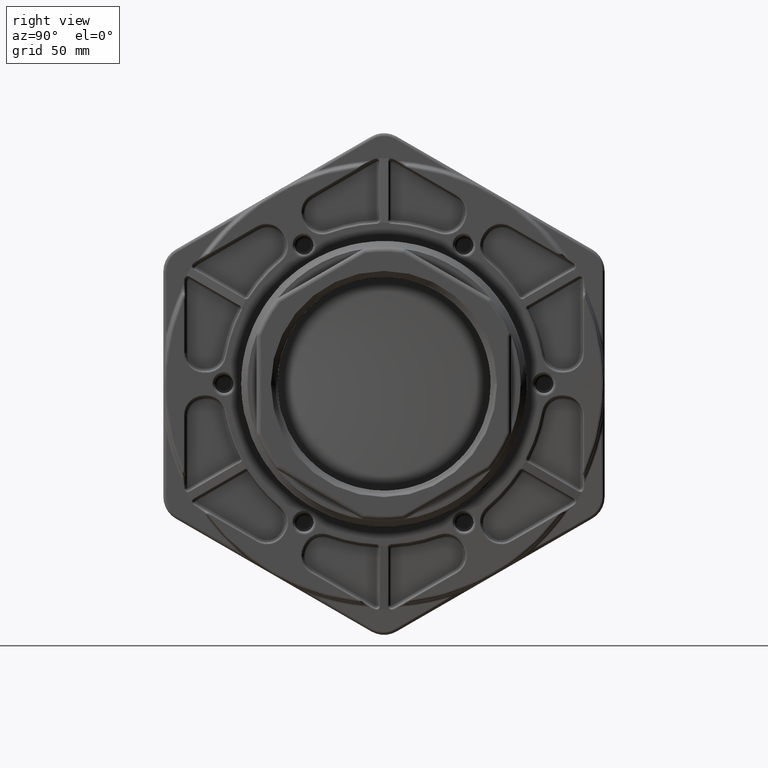
[diagram: clean part render]
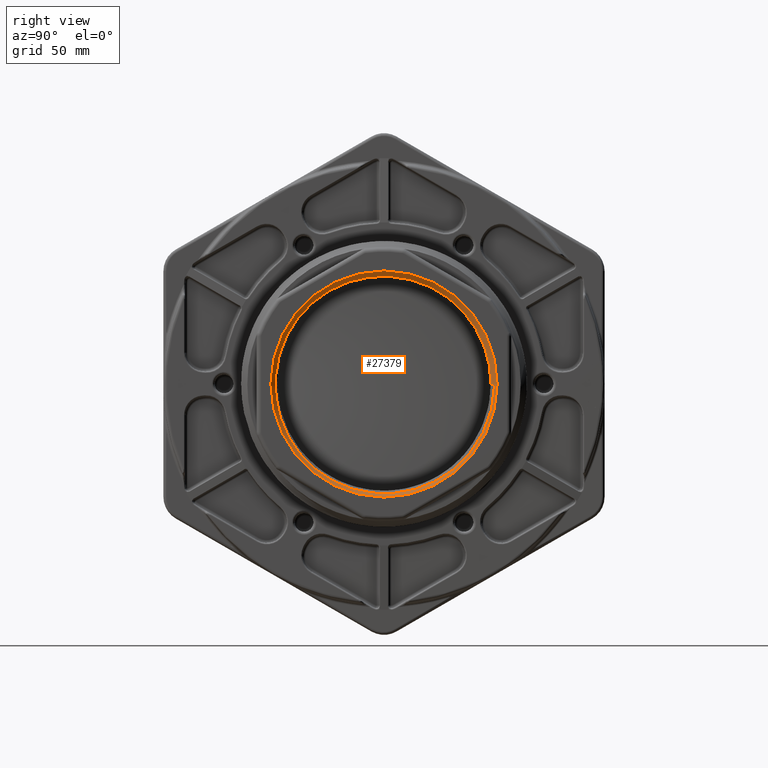
[diagram: same view with one face highlighted and labeled with its STEP entity id]
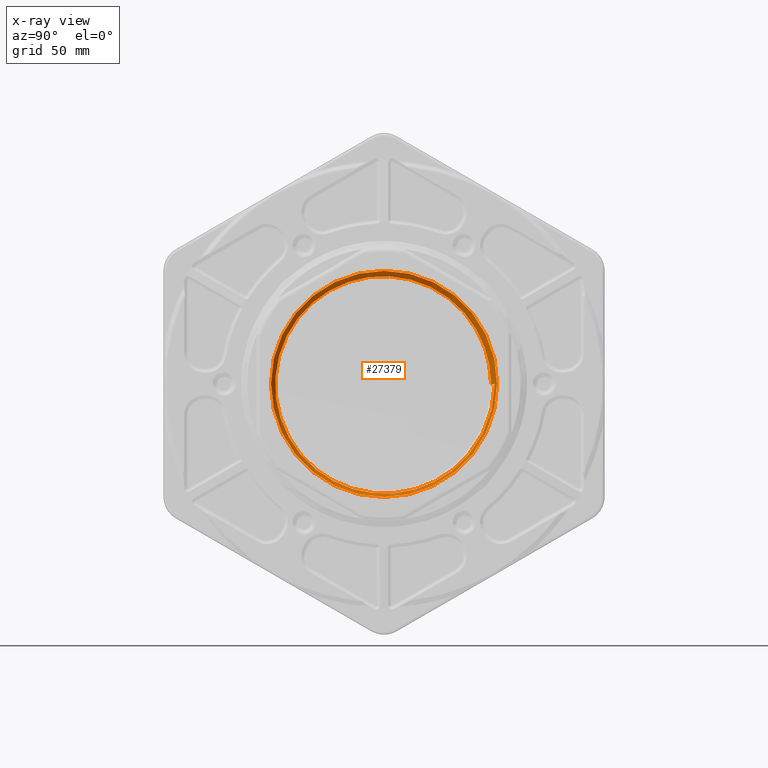
[diagram: x-ray of the same camera — body ghosted, the highlighted face saturated]
A machine part, right view. The second image highlights one B-rep face of the part: STEP entity #27379.
The next image is the same camera in x-ray: the body ghosted, the highlighted face saturated — about 0% of this face is hidden behind the body in this view.
In plain terms, the highlighted conical surface has half-angle 45 deg.
Its self-contained STEP definition (entity closure, byte-faithful):
#128=CONICAL_SURFACE('',#29651,2.2125,0.78539816339745);
#1298=CIRCLE('',#28854,2.15);
#1718=CIRCLE('',#29607,2.275);
#3564=FACE_OUTER_BOUND('',#5382,.T.);
#5382=EDGE_LOOP('',(#19626,#19627,#19628,#19629,#19630,#19631));
#7045=B_SPLINE_CURVE_WITH_KNOTS('',3,(#53383,#53384,#53385,#53386,#53387,
#53388,#53389,#53390,#53391,#53392,#53393,#53394,#53395,#53396,#53397,#53398,
#53399,#53400,#53401,#53402,#53403,#53404,#53405,#53406,#53407,#53408,#53409,
#53410,#53411,#53412,#53413,#53414,#53415,#53416,#53417,#53418,#53419,#53420,
#53421,#53422,#53423,#53424,#53425,#53426,#53427,#53428,#53429,#53430,#53431,
#53432,#53433,#53434,#53435,#53436,#53437,#53438,#53439,#53440,#53441,#53442,
#53443,#53444,#53445,#53446,#53447,#53448,#53449,#53450,#53451,#53452,#53453,
#53454,#53455,#53456,#53457,#53458,#53459,#53460,#53461,#53462,#53463,#53464,
#53465,#53466,#53467,#53468,#53469,#53470,#53471,#53472,#53473,#53474,#53475,
#53476,#53477,#53478,#53479,#53480,#53481,#53482,#53483,#53484,#53485,#53486,
#53487,#53488,#53489,#53490,#53491,#53492,#53493,#53494,#53495,#53496,#53497,
#53498,#53499,#53500,#53501,#53502,#53503,#53504,#53505,#53506,#53507,#53508,
#53509,#53510,#53511,#53512,#53513,#53514,#53515,#53516,#53517,#53518,#53519,
#53520,#53521,#53522,#53523,#53524,#53525,#53526,#53527,#53528,#53529,#53530,
#53531,#53532,#53533,#53534,#53535,#53536,#53537,#53538,#53539,#53540,#53541,
#53542,#53543,#53544,#53545,#53546,#53547,#53548,#53549,#53550,#53551,#53552,
#53553,#53554,#53555,#53556,#53557,#53558,#53559,#53560,#53561,#53562,#53563,
#53564,#53565,#53566,#53567,#53568,#53569,#53570,#53571,#53572,#53573,#53574,
#53575,#53576,#53577,#53578,#53579,#53580,#53581,#53582,#53583,#53584,#53585,
#53586,#53587,#53588,#53589,#53590,#53591,#53592,#53593,#53594,#53595,#53596,
#53597,#53598,#53599,#53600,#53601,#53602,#53603,#53604,#53605,#53606,#53607,
#53608,#53609,#53610,#53611,#53612,#53613,#53614,#53615,#53616,#53617,#53618,
#53619,#53620,#53621,#53622,#53623,#53624,#53625,#53626,#53627,#53628,#53629,
#53630,#53631,#53632,#53633,#53634,#53635,#53636,#53637,#53638,#53639,#53640,
#53641,#53642,#53643,#53644,#53645,#53646,#53647,#53648,#53649,#53650,#53651,
#53652,#53653,#53654,#53655,#53656,#53657,#53658,#53659,#53660,#53661,#53662,
#53663,#53664,#53665,#53666,#53667,#53668),.UNSPECIFIED.,.F.,.F.,(4,3,3,
3,3,3,3,3,3,3,3,3,3,3,3,3,3,3,3,3,3,3,3,3,3,3,3,3,3,3,3,3,3,3,3,3,3,3,3,
3,3,3,3,3,3,3,3,3,3,3,3,3,3,3,3,3,3,3,3,3,3,3,3,3,3,3,3,3,3,3,3,3,3,3,3,
3,3,3,3,3,3,3,3,3,3,3,3,3,3,3,3,3,3,3,3,4),(0.,0.608304012657284,1.22748540291444,
1.8434693331945,2.09062236119475,2.19696073967322,2.30061085425272,2.81961454971996,
3.4342150479123,3.98392852691538,4.23736010874879,4.39810004846106,4.5030079449185,
5.11979079905407,5.63306896392461,6.24982161723018,6.54238046667656,6.67565218612743,
7.2900487169171,7.90314276264809,8.43856298313219,8.67415298606576,8.78535773467228,
8.87522412951882,9.48795054921442,10.1031891344376,10.669018191326,10.8571876472837,
10.9723719520777,11.0601146100165,11.2348472482145,11.8415608288353,12.4555483487687,
12.8478822376505,13.0469714419682,13.1573854102301,13.248183108197,13.8609230449755,
14.0248839042962,14.6365726081671,15.1794357327482,15.3184351273754,15.4181117361566,
16.0289213929844,16.6386866814655,16.8080251064912,17.4196555712944,17.5185186686747,
17.625685957771,18.2352171649165,18.8463052888899,19.4478663097835,19.5824962893458,
19.6834295479927,19.774615581733,20.3762142989171,20.9866141677197,21.5928043444991,
21.8156654123497,21.9328345914119,22.3486128315945,22.9534444405005,23.4922738475651,
23.8963959028636,24.012424315279,24.1102523027063,24.7182440244025,25.108762068759,
25.7165733363091,25.9846635856007,26.1410046605183,26.2452135515256,26.8509549425124,
27.4554862675194,27.8612953306422,28.2042094888756,28.3181364456511,28.4109397179938,
29.0151298547612,29.6215167375577,30.1130626670334,30.3591531015253,30.4664480707296,
30.5619183065342,30.6046085965091,31.2010402878105,31.8064906050593,32.4075824216617,
32.5834338942446,32.6952192900783,33.2964493320934,33.3400778813269,33.6351551098652,
33.7753341453299,34.3776130722771,34.905804145326),.UNSPECIFIED.);
#8112=LINE('',#52559,#9576);
#8117=LINE('',#54756,#9581);
#9576=VECTOR('',#34143,0.393700787401575);
#9581=VECTOR('',#34152,2.2125);
#10797=VERTEX_POINT('',#42291);
#10798=VERTEX_POINT('',#42314);
#11287=VERTEX_POINT('',#50348);
#11307=VERTEX_POINT('',#52558);
#13418=EDGE_CURVE('',#10798,#10797,#1298,.T.);
#14285=EDGE_CURVE('',#11287,#11287,#1718,.T.);
#14323=EDGE_CURVE('',#10797,#11307,#8112,.T.);
#14326=EDGE_CURVE('',#11307,#10798,#7045,.T.);
#14332=EDGE_CURVE('',#11307,#11287,#8117,.T.);
#19626=ORIENTED_EDGE('',*,*,#14323,.T.);
#19627=ORIENTED_EDGE('',*,*,#14332,.T.);
#19628=ORIENTED_EDGE('',*,*,#14285,.T.);
#19629=ORIENTED_EDGE('',*,*,#14332,.F.);
#19630=ORIENTED_EDGE('',*,*,#14326,.T.);
#19631=ORIENTED_EDGE('',*,*,#13418,.T.);
#27379=ADVANCED_FACE('',(#3564),#128,.F.);
#28854=AXIS2_PLACEMENT_3D('',#42315,#32270,#32271);
#29607=AXIS2_PLACEMENT_3D('',#50349,#34041,#34042);
#29651=AXIS2_PLACEMENT_3D('',#54755,#34150,#34151);
#32270=DIRECTION('center_axis',(-1.,0.,0.));
#32271=DIRECTION('ref_axis',(0.,-1.,0.));
#34041=DIRECTION('center_axis',(1.,0.,0.));
#34042=DIRECTION('ref_axis',(0.,-1.,0.));
#34143=DIRECTION('',(0.707106781186547,0.707106781186549,0.));
#34150=DIRECTION('center_axis',(1.,0.,0.));
#34151=DIRECTION('ref_axis',(0.,-1.,0.));
#34152=DIRECTION('',(0.707106781186547,0.707106781186549,-8.65956056235495E-17));
#42291=CARTESIAN_POINT('',(5.875,2.15,-2.63299061816681E-16));
#42314=CARTESIAN_POINT('',(5.875,2.14932640620275,0.0538144924677564));
#42315=CARTESIAN_POINT('Origin',(5.875,0.,0.));
#50348=CARTESIAN_POINT('',(6.,2.275,2.78607146806023E-16));
#50349=CARTESIAN_POINT('Origin',(6.,0.,0.));
#52558=CARTESIAN_POINT('',(5.95192307692308,2.22692307692308,0.));
#52559=CARTESIAN_POINT('',(5.9375,2.2125,0.));
#53383=CARTESIAN_POINT('Ctrl Pts',(5.95192307692308,2.22692307692308,0.));
#53384=CARTESIAN_POINT('Ctrl Pts',(5.95148246346746,2.22648246346746,-0.0798274909609643));
#53385=CARTESIAN_POINT('Ctrl Pts',(5.95104286967635,2.22167260223382,-0.159413582151447));
#53386=CARTESIAN_POINT('Ctrl Pts',(5.95060366301856,2.21264710154641,-0.238428633457817));
#53387=CARTESIAN_POINT('Ctrl Pts',(5.95015660269458,2.20346021152576,-0.318856591026927));
#53388=CARTESIAN_POINT('Ctrl Pts',(5.94970994347275,2.1899054687069,-0.398693813705387));
#53389=CARTESIAN_POINT('Ctrl Pts',(5.94926301827972,2.17209137508357,-0.477592571668302));
#53390=CARTESIAN_POINT('Ctrl Pts',(5.94881840101365,2.15436927364911,-0.556083895517724));
#53391=CARTESIAN_POINT('Ctrl Pts',(5.94837352051624,2.1324314219076,-0.633647325642183));
#53392=CARTESIAN_POINT('Ctrl Pts',(5.94792771999522,2.10633532704132,-0.709926772633841));
#53393=CARTESIAN_POINT('Ctrl Pts',(5.94774885015262,2.09586471482544,-0.740532597512425));
#53394=CARTESIAN_POINT('Ctrl Pts',(5.94756983219739,2.08472414142204,-0.770931486925328));
#53395=CARTESIAN_POINT('Ctrl Pts',(5.94739062370495,2.07291521992541,-0.801099311111946));
#53396=CARTESIAN_POINT('Ctrl Pts',(5.94731351867957,2.06783439379234,-0.814079113674694));
#53397=CARTESIAN_POINT('Ctrl Pts',(5.94723637838235,2.0626298297795,-0.827016132164567));
#53398=CARTESIAN_POINT('Ctrl Pts',(5.9471591994343,2.05730159020156,-0.83990839739024));
#53399=CARTESIAN_POINT('Ctrl Pts',(5.94708397159159,2.05210805000786,-0.852474742551321));
#53400=CARTESIAN_POINT('Ctrl Pts',(5.94700874900813,2.04679987004593,-0.86499153847101));
#53401=CARTESIAN_POINT('Ctrl Pts',(5.94693356469411,2.04138017035114,-0.877451163014307));
#53402=CARTESIAN_POINT('Ctrl Pts',(5.94655709683422,2.01424229229544,-0.939839817463367));
#53403=CARTESIAN_POINT('Ctrl Pts',(5.94618130314283,1.98429067789462,-1.00084324999694));
#53404=CARTESIAN_POINT('Ctrl Pts',(5.94580578827113,1.9515891125974,-1.06025981898638));
#53405=CARTESIAN_POINT('Ctrl Pts',(5.9453611062212,1.91286415071587,-1.13062049892126));
#53406=CARTESIAN_POINT('Ctrl Pts',(5.9449168151637,1.87028385266234,-1.198757097348));
#53407=CARTESIAN_POINT('Ctrl Pts',(5.94447225857883,1.82412125906533,-1.26442477893519));
#53408=CARTESIAN_POINT('Ctrl Pts',(5.94407463646886,1.7828323242196,-1.32315953396635));
#53409=CARTESIAN_POINT('Ctrl Pts',(5.94367680193847,1.73867658928756,-1.37991922434996));
#53410=CARTESIAN_POINT('Ctrl Pts',(5.94327828522526,1.69182178378063,-1.43450765237183));
#53411=CARTESIAN_POINT('Ctrl Pts',(5.9430945591118,1.67022055344941,-1.45967427497034));
#53412=CARTESIAN_POINT('Ctrl Pts',(5.94291068800452,1.64804532498436,-1.48437909287609));
#53413=CARTESIAN_POINT('Ctrl Pts',(5.94272662587234,1.62531100995105,-1.50860108736103));
#53414=CARTESIAN_POINT('Ctrl Pts',(5.94260988376854,1.61089168461906,-1.52396397901428));
#53415=CARTESIAN_POINT('Ctrl Pts',(5.94249306481966,1.59624743303106,-1.53913261753306));
#53416=CARTESIAN_POINT('Ctrl Pts',(5.94237615728102,1.58138188864152,-1.55410137114678));
#53417=CARTESIAN_POINT('Ctrl Pts',(5.94229985686694,1.57167980094389,-1.56387081897049));
#53418=CARTESIAN_POINT('Ctrl Pts',(5.94222355872409,1.56188850479064,-1.57354996273985));
#53419=CARTESIAN_POINT('Ctrl Pts',(5.94214730123239,1.55201474694929,-1.58313234137911));
#53420=CARTESIAN_POINT('Ctrl Pts',(5.94169896211811,1.49396416402767,-1.63946982450588));
#53421=CARTESIAN_POINT('Ctrl Pts',(5.94125157900497,1.43300953054014,-1.69252271999449));
#53422=CARTESIAN_POINT('Ctrl Pts',(5.94080448413186,1.36942128020287,-1.74204557960072));
#53423=CARTESIAN_POINT('Ctrl Pts',(5.94043241795905,1.31650401730945,-1.78325781876625));
#53424=CARTESIAN_POINT('Ctrl Pts',(5.9400605514022,1.26176188647643,-1.82202508618402));
#53425=CARTESIAN_POINT('Ctrl Pts',(5.93968849961919,1.20533176734682,-1.85818598972121));
#53426=CARTESIAN_POINT('Ctrl Pts',(5.93924144392884,1.1375255989151,-1.90163676306183));
#53427=CARTESIAN_POINT('Ctrl Pts',(5.93879412080313,1.06728225465868,-1.9413258666157));
#53428=CARTESIAN_POINT('Ctrl Pts',(5.93834586257902,0.994943268096327,-1.97713273249817));
#53429=CARTESIAN_POINT('Ctrl Pts',(5.93813322967085,0.960629008456956,-1.99411784870109));
#53430=CARTESIAN_POINT('Ctrl Pts',(5.93792038635492,0.925842906394562,-2.01022872017598));
#53431=CARTESIAN_POINT('Ctrl Pts',(5.93770726136826,0.890620241146279,-2.02544854439788));
#53432=CARTESIAN_POINT('Ctrl Pts',(5.93761017480437,0.874574973091104,-2.03238175509251));
#53433=CARTESIAN_POINT('Ctrl Pts',(5.93751300271611,0.858434541689965,-2.03913173934869));
#53434=CARTESIAN_POINT('Ctrl Pts',(5.93741590527059,0.84223024512665,-2.04568579589596));
#53435=CARTESIAN_POINT('Ctrl Pts',(5.93696827591663,0.767526747389772,-2.07590068035781));
#53436=CARTESIAN_POINT('Ctrl Pts',(5.93652162619602,0.69136872062604,-2.10200071088265));
#53437=CARTESIAN_POINT('Ctrl Pts',(5.93607529185866,0.614114867517148,-2.12391321866757));
#53438=CARTESIAN_POINT('Ctrl Pts',(5.93562990372423,0.537024788102209,-2.14577927320519));
#53439=CARTESIAN_POINT('Ctrl Pts',(5.93518482963729,0.458842610104646,-2.16347580157309));
#53440=CARTESIAN_POINT('Ctrl Pts',(5.93473940956328,0.379906162386097,-2.17688280613806));
#53441=CARTESIAN_POINT('Ctrl Pts',(5.9343504204418,0.310970294331294,-2.18859125672601));
#53442=CARTESIAN_POINT('Ctrl Pts',(5.93396116744717,0.241458523913366,-2.19702763092549));
#53443=CARTESIAN_POINT('Ctrl Pts',(5.93357121096725,0.171592362040703,-2.20207963315638));
#53444=CARTESIAN_POINT('Ctrl Pts',(5.93339962639735,0.140850584553002,-2.20430256231531));
#53445=CARTESIAN_POINT('Ctrl Pts',(5.9332279056268,0.11004019528006,-2.20586982940331));
#53446=CARTESIAN_POINT('Ctrl Pts',(5.93305601120523,0.0791813419287075,
-2.20678333352275));
#53447=CARTESIAN_POINT('Ctrl Pts',(5.93297487246548,0.0646151422322357,
-2.20721453176838));
#53448=CARTESIAN_POINT('Ctrl Pts',(5.93289369503469,0.0500381472594104,
-2.20750004977583));
#53449=CARTESIAN_POINT('Ctrl Pts',(5.93281247497416,0.0354524956462588,
-2.20764000257368));
#53450=CARTESIAN_POINT('Ctrl Pts',(5.9327468397012,0.0236655895708766,-2.20775310074214));
#53451=CARTESIAN_POINT('Ctrl Pts',(5.93268119572492,0.0118764678066673,
-2.20777105989272));
#53452=CARTESIAN_POINT('Ctrl Pts',(5.93261558601193,9.43532225959218E-5,
-2.2076942639262));
#53453=CARTESIAN_POINT('Ctrl Pts',(5.93216824632941,-0.0802383773589422,
-2.20717065420871));
#53454=CARTESIAN_POINT('Ctrl Pts',(5.93172187800735,-0.160356367778032,
-2.20224776680956));
#53455=CARTESIAN_POINT('Ctrl Pts',(5.93127581798658,-0.239906479269386,
-2.19304535902381));
#53456=CARTESIAN_POINT('Ctrl Pts',(5.93082792912904,-0.319782744556917,
-2.18380522155827));
#53457=CARTESIAN_POINT('Ctrl Pts',(5.93038035110603,-0.399087415835992,
-2.17025024398728));
#53458=CARTESIAN_POINT('Ctrl Pts',(5.92993241266928,-0.477461933320753,
-2.15244890658366));
#53459=CARTESIAN_POINT('Ctrl Pts',(5.92952044796275,-0.54954222928659,-2.13607718641468));
#53460=CARTESIAN_POINT('Ctrl Pts',(5.92910817840728,-0.620836324805174,
-2.11611309439313));
#53461=CARTESIAN_POINT('Ctrl Pts',(5.92869508183733,-0.691054077019273,
-2.09257239496109));
#53462=CARTESIAN_POINT('Ctrl Pts',(5.92855770438052,-0.714405363192792,
-2.08474381042472));
#53463=CARTESIAN_POINT('Ctrl Pts',(5.92842023546167,-0.737637481805539,
-2.07651939087344));
#53464=CARTESIAN_POINT('Ctrl Pts',(5.92828265587642,-0.760739306474609,
-2.06789886729958));
#53465=CARTESIAN_POINT('Ctrl Pts',(5.92819843918566,-0.774880643071655,
-2.0626219799867));
#53466=CARTESIAN_POINT('Ctrl Pts',(5.92811418102777,-0.788973152947461,
-2.05719666272861));
#53467=CARTESIAN_POINT('Ctrl Pts',(5.92802987699786,-0.803014231299477,
-2.05162277710454));
#53468=CARTESIAN_POINT('Ctrl Pts',(5.92796565766111,-0.813710146312695,
-2.04737682067343));
#53469=CARTESIAN_POINT('Ctrl Pts',(5.92790142665551,-0.824373708198078,
-2.04304559928371));
#53470=CARTESIAN_POINT('Ctrl Pts',(5.92783722953097,-0.834995992101659,
-2.03863253654182));
#53471=CARTESIAN_POINT('Ctrl Pts',(5.92770938598032,-0.856149439395837,
-2.02984426737448));
#53472=CARTESIAN_POINT('Ctrl Pts',(5.92758162206696,-0.877148315586482,
-2.02072785895675));
#53473=CARTESIAN_POINT('Ctrl Pts',(5.92745392231531,-0.897984641267564,
-2.01128541298591));
#53474=CARTESIAN_POINT('Ctrl Pts',(5.92701051818446,-0.970333355802677,
-1.97849897844303));
#53475=CARTESIAN_POINT('Ctrl Pts',(5.92656788761575,-1.04072365729471,-1.94178552391526));
#53476=CARTESIAN_POINT('Ctrl Pts',(5.92612538275578,-1.10890697478547,-1.90141222542912));
#53477=CARTESIAN_POINT('Ctrl Pts',(5.92567757266842,-1.17790774771054,-1.86055488812728));
#53478=CARTESIAN_POINT('Ctrl Pts',(5.92522989132214,-1.24464908460861,-1.81594890838103));
#53479=CARTESIAN_POINT('Ctrl Pts',(5.92478166728153,-1.30884879245469,-1.76782452613672));
#53480=CARTESIAN_POINT('Ctrl Pts',(5.9244952551392,-1.3498719732631,-1.73707337009043));
#53481=CARTESIAN_POINT('Ctrl Pts',(5.92420862140806,-1.38985684651915,-1.70488469031202));
#53482=CARTESIAN_POINT('Ctrl Pts',(5.92392159090465,-1.42872235110009,-1.67131025747292));
#53483=CARTESIAN_POINT('Ctrl Pts',(5.92377593773484,-1.44844458922863,-1.65427296523593));
#53484=CARTESIAN_POINT('Ctrl Pts',(5.92363018239464,-1.46787848236753,-1.6368787416314));
#53485=CARTESIAN_POINT('Ctrl Pts',(5.92348430199283,-1.48701274374739,-1.61913380984614));
#53486=CARTESIAN_POINT('Ctrl Pts',(5.92340339738471,-1.49762451818262,-1.60929255129242));
#53487=CARTESIAN_POINT('Ctrl Pts',(5.92332245431063,-1.50814412428895,-1.59934341715153));
#53488=CARTESIAN_POINT('Ctrl Pts',(5.92324146886579,-1.51856956829949,-1.58928742549485));
#53489=CARTESIAN_POINT('Ctrl Pts',(5.92317487138655,-1.52714281615337,-1.5810179926724));
#53490=CARTESIAN_POINT('Ctrl Pts',(5.92310826380416,-1.53564996567136,-1.5726785689477));
#53491=CARTESIAN_POINT('Ctrl Pts',(5.9230416918326,-1.5440840287362,-1.56427596034826));
#53492=CARTESIAN_POINT('Ctrl Pts',(5.92259243698852,-1.60100052975829,-1.50757172690088));
#53493=CARTESIAN_POINT('Ctrl Pts',(5.92214416085987,-1.65467409511347,-1.44791373103703));
#53494=CARTESIAN_POINT('Ctrl Pts',(5.92169619181163,-1.70483861622832,-1.38554438504862));
#53495=CARTESIAN_POINT('Ctrl Pts',(5.9215763213973,-1.71826195865423,-1.36885519776095));
#53496=CARTESIAN_POINT('Ctrl Pts',(5.92145647297069,-1.73143386264778,-1.35197164703612));
#53497=CARTESIAN_POINT('Ctrl Pts',(5.92133663366337,-1.74434880081815,-1.3348979112461));
#53498=CARTESIAN_POINT('Ctrl Pts',(5.92088954921363,-1.79253055482176,-1.27120093283978));
#53499=CARTESIAN_POINT('Ctrl Pts',(5.92044259168729,-1.83713923547858,-1.20485915698023));
#53500=CARTESIAN_POINT('Ctrl Pts',(5.91999509290024,-1.87804865828116,-1.13621338209394));
#53501=CARTESIAN_POINT('Ctrl Pts',(5.91959794548154,-1.91435506208896,-1.07529144646193));
#53502=CARTESIAN_POINT('Ctrl Pts',(5.9192003717521,-1.94774743484488,-1.0125539376876));
#53503=CARTESIAN_POINT('Ctrl Pts',(5.91880190464856,-1.97810662899007,-0.948224797805837));
#53504=CARTESIAN_POINT('Ctrl Pts',(5.91869987766669,-1.98588006103302,-0.931753405486902));
#53505=CARTESIAN_POINT('Ctrl Pts',(5.91859779211438,-1.99345447667947,-0.915177618167162));
#53506=CARTESIAN_POINT('Ctrl Pts',(5.91849564015113,-2.00082754136989,-0.898501116022731));
#53507=CARTESIAN_POINT('Ctrl Pts',(5.91842238687327,-2.00611477363904,-0.886542379191202));
#53508=CARTESIAN_POINT('Ctrl Pts',(5.91834909668478,-2.0112985760652,-0.874531365110265));
#53509=CARTESIAN_POINT('Ctrl Pts',(5.91827585378776,-2.01637223937151,-0.862483846245617));
#53510=CARTESIAN_POINT('Ctrl Pts',(5.91782702763546,-2.04746321027109,-0.7886576903067));
#53511=CARTESIAN_POINT('Ctrl Pts',(5.91737918820422,-2.07447978085436,-0.713334492728223));
#53512=CARTESIAN_POINT('Ctrl Pts',(5.91693166590599,-2.09731531968592,-0.636861086267729));
#53513=CARTESIAN_POINT('Ctrl Pts',(5.91648490878577,-2.12011181408905,-0.560518434788233));
#53514=CARTESIAN_POINT('Ctrl Pts',(5.916038467715,-2.13874189820104,-0.483028611304988));
#53515=CARTESIAN_POINT('Ctrl Pts',(5.91559167653437,-2.15305184177836,-0.404717451151914));
#53516=CARTESIAN_POINT('Ctrl Pts',(5.91546759778428,-2.15702586810188,-0.382969593783227));
#53517=CARTESIAN_POINT('Ctrl Pts',(5.91534349203256,-2.1606664110641,-0.361158322083156));
#53518=CARTESIAN_POINT('Ctrl Pts',(5.91521934501142,-2.16396946939118,-0.339290493621394));
#53519=CARTESIAN_POINT('Ctrl Pts',(5.91477094057971,-2.17589972739111,-0.260306470448454));
#53520=CARTESIAN_POINT('Ctrl Pts',(5.91432199775982,-2.18343124296118,-0.180584280531354));
#53521=CARTESIAN_POINT('Ctrl Pts',(5.91387184426071,-2.18657727940654,-0.100484733683019));
#53522=CARTESIAN_POINT('Ctrl Pts',(5.9137990820754,-2.18708580036054,-0.0875375543715241));
#53523=CARTESIAN_POINT('Ctrl Pts',(5.91372628825863,-2.18747963205436,-0.074580529751087));
#53524=CARTESIAN_POINT('Ctrl Pts',(5.91365345997121,-2.18775870403031,-0.0616152054206582));
#53525=CARTESIAN_POINT('Ctrl Pts',(5.91357451433489,-2.18806121718151,-0.0475608342997215));
#53526=CARTESIAN_POINT('Ctrl Pts',(5.91349557569573,-2.18822865749381,-0.0335051684635065));
#53527=CARTESIAN_POINT('Ctrl Pts',(5.91341667844441,-2.18826148931628,-0.01945695725948));
#53528=CARTESIAN_POINT('Ctrl Pts',(5.91296793762767,-2.18844822559144,0.0604445052635233));
#53529=CARTESIAN_POINT('Ctrl Pts',(5.91252014719523,-2.18428627378835,0.140173376791252));
#53530=CARTESIAN_POINT('Ctrl Pts',(5.91207263746422,-2.17585789442381,0.219371298003861));
#53531=CARTESIAN_POINT('Ctrl Pts',(5.91162398466551,-2.16740798657063,0.298771513331737));
#53532=CARTESIAN_POINT('Ctrl Pts',(5.91117561400404,-2.15466973309319,0.377639024759939));
#53533=CARTESIAN_POINT('Ctrl Pts',(5.91072685065213,-2.13767381837026,0.455611713693132));
#53534=CARTESIAN_POINT('Ctrl Pts',(5.91028508369656,-2.12094287661137,0.53236877788132));
#53535=CARTESIAN_POINT('Ctrl Pts',(5.90984293619949,-2.10008578254506,0.608259579730778));
#53536=CARTESIAN_POINT('Ctrl Pts',(5.90939976440622,-2.07508380313713,0.682924098641143));
#53537=CARTESIAN_POINT('Ctrl Pts',(5.90930058209985,-2.06948833424902,0.699634095309474));
#53538=CARTESIAN_POINT('Ctrl Pts',(5.90920134848966,-2.06368507481478,0.716282583080563));
#53539=CARTESIAN_POINT('Ctrl Pts',(5.90910205635948,-2.05767349429778,0.73286535577445));
#53540=CARTESIAN_POINT('Ctrl Pts',(5.90902761619177,-2.05316656045456,0.745297603709405));
#53541=CARTESIAN_POINT('Ctrl Pts',(5.90895314313213,-2.04854253418899,0.757692914074916));
#53542=CARTESIAN_POINT('Ctrl Pts',(5.9088786341398,-2.04380217491733,0.770049851584621));
#53543=CARTESIAN_POINT('Ctrl Pts',(5.90881132055476,-2.03951959684266,0.781213467381746));
#53544=CARTESIAN_POINT('Ctrl Pts',(5.90874399943748,-2.03514341491928,0.79234213174029));
#53545=CARTESIAN_POINT('Ctrl Pts',(5.90867671371917,-2.03067746863549,0.803427450254557));
#53546=CARTESIAN_POINT('Ctrl Pts',(5.90823279703413,-2.00121344388152,0.876562700513982));
#53547=CARTESIAN_POINT('Ctrl Pts',(5.90778983251084,-1.96780915984756,0.947909986216765));
#53548=CARTESIAN_POINT('Ctrl Pts',(5.90734717211271,-1.93071508271066,1.01720581186247));
#53549=CARTESIAN_POINT('Ctrl Pts',(5.90689803576779,-1.89307833387634,1.08751540806756));
#53550=CARTESIAN_POINT('Ctrl Pts',(5.90644921251158,-1.85164260270695,1.15571391010048));
#53551=CARTESIAN_POINT('Ctrl Pts',(5.90600002544781,-1.80662070060332,1.22150560733843));
#53552=CARTESIAN_POINT('Ctrl Pts',(5.90555393625365,-1.76190929716106,1.28684356466389));
#53553=CARTESIAN_POINT('Ctrl Pts',(5.90510748825271,-1.71366043978457,1.34980855137902));
#53554=CARTESIAN_POINT('Ctrl Pts',(5.90466001845724,-1.66204266260108,1.4100791448966));
#53555=CARTESIAN_POINT('Ctrl Pts',(5.9044955096937,-1.64306579134212,1.43223715626966));
#53556=CARTESIAN_POINT('Ctrl Pts',(5.90433086282364,-1.62363322645081,1.45403062383992));
#53557=CARTESIAN_POINT('Ctrl Pts',(5.90416604490266,-1.60375220661815,1.47544217328963));
#53558=CARTESIAN_POINT('Ctrl Pts',(5.90407939190094,-1.59329976288188,1.48669929278417));
#53559=CARTESIAN_POINT('Ctrl Pts',(5.9039926787692,-1.58272168509514,1.49785238715618));
#53560=CARTESIAN_POINT('Ctrl Pts',(5.90390602992216,-1.572035143627,1.50888262823263));
#53561=CARTESIAN_POINT('Ctrl Pts',(5.90359855396794,-1.53411364037139,1.54802375954603));
#53562=CARTESIAN_POINT('Ctrl Pts',(5.90329153833365,-1.49478548806896,1.58566426326353));
#53563=CARTESIAN_POINT('Ctrl Pts',(5.90298476770754,-1.45412077018286,1.62171447783266));
#53564=CARTESIAN_POINT('Ctrl Pts',(5.90253850921341,-1.39496590259299,1.67415663851349));
#53565=CARTESIAN_POINT('Ctrl Pts',(5.90209276919214,-1.33298407480516,1.72323553208687));
#53566=CARTESIAN_POINT('Ctrl Pts',(5.90164688483857,-1.26851413000765,1.7688195559262));
#53567=CARTESIAN_POINT('Ctrl Pts',(5.90124965758009,-1.21107946287515,1.8094292267425));
#53568=CARTESIAN_POINT('Ctrl Pts',(5.90085231577106,-1.1516691212921,1.84726487866956));
#53569=CARTESIAN_POINT('Ctrl Pts',(5.90045439077478,-1.09050317394758,1.88220546890899));
#53570=CARTESIAN_POINT('Ctrl Pts',(5.90015594702757,-1.04462871343919,1.90841091158857));
#53571=CARTESIAN_POINT('Ctrl Pts',(5.89985717523753,-0.997766310502518,
1.93298736315936));
#53572=CARTESIAN_POINT('Ctrl Pts',(5.89955787769854,-0.950004507080076,
1.95587272278611));
#53573=CARTESIAN_POINT('Ctrl Pts',(5.899471945694,-0.936291505890094,1.96244339100437));
#53574=CARTESIAN_POINT('Ctrl Pts',(5.89938597035016,-0.922504347589926,
1.96887459331885));
#53575=CARTESIAN_POINT('Ctrl Pts',(5.89929994698776,-0.908645093993652,
1.97516470365828));
#53576=CARTESIAN_POINT('Ctrl Pts',(5.89922741740436,-0.896959827787369,
1.98046813600205));
#53577=CARTESIAN_POINT('Ctrl Pts',(5.89915488631735,-0.885228551023095,
1.98566884038246));
#53578=CARTESIAN_POINT('Ctrl Pts',(5.89908239343965,-0.873459566981194,
1.99076321576475));
#53579=CARTESIAN_POINT('Ctrl Pts',(5.89863185703712,-0.800316440372633,
2.02242427862721));
#53580=CARTESIAN_POINT('Ctrl Pts',(5.89818229029348,-0.725637585451893,
2.05001913834937));
#53581=CARTESIAN_POINT('Ctrl Pts',(5.89773301559025,-0.64975504872734,2.07340679247433));
#53582=CARTESIAN_POINT('Ctrl Pts',(5.89744444278206,-0.601015076150407,
2.08842887357354));
#53583=CARTESIAN_POINT('Ctrl Pts',(5.897155990458,-0.551777889919969,2.10171436311466));
#53584=CARTESIAN_POINT('Ctrl Pts',(5.8968674790556,-0.502126914214676,2.11321550846428));
#53585=CARTESIAN_POINT('Ctrl Pts',(5.89641843327211,-0.424848993476682,
2.13111615565398));
#53586=CARTESIAN_POINT('Ctrl Pts',(5.89596924437414,-0.346568631402662,
2.14469690480103));
#53587=CARTESIAN_POINT('Ctrl Pts',(5.89551923534642,-0.267647376408096,
2.15396594207903));
#53588=CARTESIAN_POINT('Ctrl Pts',(5.89532074769265,-0.232837197565601,
2.15805428108691));
#53589=CARTESIAN_POINT('Ctrl Pts',(5.8951221004851,-0.197902276782729,2.16130310987551));
#53590=CARTESIAN_POINT('Ctrl Pts',(5.89492323562923,-0.162873697957054,
2.16370991464706));
#53591=CARTESIAN_POINT('Ctrl Pts',(5.89480726443888,-0.142446227428335,
2.16511348096883));
#53592=CARTESIAN_POINT('Ctrl Pts',(5.89469121923017,-0.121986909099618,
2.16623065294307));
#53593=CARTESIAN_POINT('Ctrl Pts',(5.89457508848153,-0.101501961482454,
2.16706062285388));
#53594=CARTESIAN_POINT('Ctrl Pts',(5.89449768171856,-0.0878477527298807,
2.16761383795759));
#53595=CARTESIAN_POINT('Ctrl Pts',(5.89442022977229,-0.0741808896274962,
2.16803938858758));
#53596=CARTESIAN_POINT('Ctrl Pts',(5.89434283004763,-0.0605210252473619,
2.16833685378438));
#53597=CARTESIAN_POINT('Ctrl Pts',(5.89389292393674,0.0188805034546104,
2.17006594791773));
#53598=CARTESIAN_POINT('Ctrl Pts',(5.89344400765786,0.0981814439523738,
2.16747820748248));
#53599=CARTESIAN_POINT('Ctrl Pts',(5.89299540672957,0.177021237329547,2.16062271125093));
#53600=CARTESIAN_POINT('Ctrl Pts',(5.89254770195387,0.255703535522729,2.15378090997714));
#53601=CARTESIAN_POINT('Ctrl Pts',(5.89210031127009,0.33392748167062,2.1426883270466));
#53602=CARTESIAN_POINT('Ctrl Pts',(5.89165256423089,0.411335039264974,2.12734246404604));
#53603=CARTESIAN_POINT('Ctrl Pts',(5.89135200113518,0.463297091728725,2.11704111152804));
#53604=CARTESIAN_POINT('Ctrl Pts',(5.8910512774603,0.51489125930484,2.10482211291333));
#53605=CARTESIAN_POINT('Ctrl Pts',(5.89075019040365,0.566006084422043,2.09067187066871));
#53606=CARTESIAN_POINT('Ctrl Pts',(5.89049576776018,0.60919880440081,2.07871472419501));
#53607=CARTESIAN_POINT('Ctrl Pts',(5.89024108564473,0.65204923087366,2.06537835119638));
#53608=CARTESIAN_POINT('Ctrl Pts',(5.88998602169025,0.694498822169411,2.05069062159791));
#53609=CARTESIAN_POINT('Ctrl Pts',(5.88990128135678,0.708601922425187,2.04581089209442));
#53610=CARTESIAN_POINT('Ctrl Pts',(5.88981649887673,0.722660757182533,2.04078196517001));
#53611=CARTESIAN_POINT('Ctrl Pts',(5.88973166976275,0.736673108681155,2.03560475344942));
#53612=CARTESIAN_POINT('Ctrl Pts',(5.88966256917769,0.748087370143878,2.03138747070194));
#53613=CARTESIAN_POINT('Ctrl Pts',(5.88959346207996,0.759466734320539,2.02707324182053));
#53614=CARTESIAN_POINT('Ctrl Pts',(5.88952439169467,0.770802619635256,2.0226657768798));
#53615=CARTESIAN_POINT('Ctrl Pts',(5.8890747130952,0.844604220869603,1.99397124081317));
#53616=CARTESIAN_POINT('Ctrl Pts',(5.88862600730164,0.91666035104999,1.96129366230503));
#53617=CARTESIAN_POINT('Ctrl Pts',(5.88817760063752,0.986679773343036,1.92486014518809));
#53618=CARTESIAN_POINT('Ctrl Pts',(5.88772756363306,1.05695377590564,1.88829416118833));
#53619=CARTESIAN_POINT('Ctrl Pts',(5.88727782793719,1.1251770790311,1.84794440450927));
#53620=CARTESIAN_POINT('Ctrl Pts',(5.88682771249852,1.19103538462457,1.80399180688456));
#53621=CARTESIAN_POINT('Ctrl Pts',(5.88646284244947,1.24442107444579,1.76836319903495));
#53622=CARTESIAN_POINT('Ctrl Pts',(5.88609772287307,1.29625255046661,1.73036616072164));
#53623=CARTESIAN_POINT('Ctrl Pts',(5.88573199100649,1.34634706606451,1.69007691523198));
#53624=CARTESIAN_POINT('Ctrl Pts',(5.88554888886169,1.37142667789711,1.66990627128326));
#53625=CARTESIAN_POINT('Ctrl Pts',(5.88536563324863,1.39607067956372,1.64916083029804));
#53626=CARTESIAN_POINT('Ctrl Pts',(5.88518217864602,1.42025445745935,1.62784867459911));
#53627=CARTESIAN_POINT('Ctrl Pts',(5.88510219278237,1.43079853939376,1.618556614572));
#53628=CARTESIAN_POINT('Ctrl Pts',(5.88502216909193,1.44125511958083,1.6091568133355));
#53629=CARTESIAN_POINT('Ctrl Pts',(5.88494210380185,1.4516220815767,1.59964988707757));
#53630=CARTESIAN_POINT('Ctrl Pts',(5.88487086232446,1.46084652437827,1.59119069744033));
#53631=CARTESIAN_POINT('Ctrl Pts',(5.88479961741225,1.46999616119369,1.5826501637865));
#53632=CARTESIAN_POINT('Ctrl Pts',(5.88472841014875,1.47906418319616,1.57403428906901));
#53633=CARTESIAN_POINT('Ctrl Pts',(5.88469656924355,1.48311902275451,1.57018163083497));
#53634=CARTESIAN_POINT('Ctrl Pts',(5.88466473319094,1.48715789010789,1.5663135906279));
#53635=CARTESIAN_POINT('Ctrl Pts',(5.88463290175171,1.49118068274472,1.56243023949438));
#53636=CARTESIAN_POINT('Ctrl Pts',(5.88418818050145,1.54738365109061,1.50817542684631));
#53637=CARTESIAN_POINT('Ctrl Pts',(5.88374435975078,1.60045160124557,1.4509355473439));
#53638=CARTESIAN_POINT('Ctrl Pts',(5.88330078720913,1.65024665470537,1.39104674540635));
#53639=CARTESIAN_POINT('Ctrl Pts',(5.88285050742021,1.7007946576944,1.33025236666764));
#53640=CARTESIAN_POINT('Ctrl Pts',(5.88240048340338,1.74797061898498,1.2667276172134));
#53641=CARTESIAN_POINT('Ctrl Pts',(5.88195003282856,1.79159230827474,1.20078702305546));
#53642=CARTESIAN_POINT('Ctrl Pts',(5.88150282494611,1.83489997483537,1.13532112040246));
#53643=CARTESIAN_POINT('Ctrl Pts',(5.88105519662495,1.87470480951175,1.06747319421012));
#53644=CARTESIAN_POINT('Ctrl Pts',(5.88060648016502,1.9107837777583,0.99752671256325));
#53645=CARTESIAN_POINT('Ctrl Pts',(5.88047520662566,1.92133880366314,0.977063629453716));
#53646=CARTESIAN_POINT('Ctrl Pts',(5.8803438399552,1.93157462407406,0.956420821356202));
#53647=CARTESIAN_POINT('Ctrl Pts',(5.88021236343517,1.94148483587704,0.935605146636049));
#53648=CARTESIAN_POINT('Ctrl Pts',(5.88012878634242,1.94778456674037,0.922373022935515));
#53649=CARTESIAN_POINT('Ctrl Pts',(5.8800451631269,1.95395275164845,0.909070727973007));
#53650=CARTESIAN_POINT('Ctrl Pts',(5.87996157552579,1.95998172124071,0.895713873338659));
#53651=CARTESIAN_POINT('Ctrl Pts',(5.87951200537798,1.9924081183942,0.823874951866798));
#53652=CARTESIAN_POINT('Ctrl Pts',(5.87906285628383,2.02085779559794,0.750363365185241));
#53653=CARTESIAN_POINT('Ctrl Pts',(5.87861345127716,2.04513134953632,0.675478837725261));
#53654=CARTESIAN_POINT('Ctrl Pts',(5.87858083998516,2.04689277173592,0.670044805716202));
#53655=CARTESIAN_POINT('Ctrl Pts',(5.87854822734559,2.04863218230294,0.664603535753881));
#53656=CARTESIAN_POINT('Ctrl Pts',(5.87851561309977,2.05034949489478,0.659155138739722));
#53657=CARTESIAN_POINT('Ctrl Pts',(5.87829502998536,2.06196436288914,0.622305463030626));
#53658=CARTESIAN_POINT('Ctrl Pts',(5.87807437339547,2.07256863248242,0.585129818347641));
#53659=CARTESIAN_POINT('Ctrl Pts',(5.87785356330024,2.08216042351307,0.54767067246638));
#53660=CARTESIAN_POINT('Ctrl Pts',(5.87774866552035,2.0867170882944,0.529875375401342));
#53661=CARTESIAN_POINT('Ctrl Pts',(5.87764372369634,2.09104557821294,0.512014484043098));
#53662=CARTESIAN_POINT('Ctrl Pts',(5.87753875865646,2.09514431342963,0.494097540224549));
#53663=CARTESIAN_POINT('Ctrl Pts',(5.87708777658642,2.11275452054775,0.417117429315406));
#53664=CARTESIAN_POINT('Ctrl Pts',(5.87663728845312,2.12609230805134,0.339261335445647));
#53665=CARTESIAN_POINT('Ctrl Pts',(5.87618661131999,2.13516456697724,0.260895952003396));
#53666=CARTESIAN_POINT('Ctrl Pts',(5.8757913731207,2.14312082438997,0.192170492555468));
#53667=CARTESIAN_POINT('Ctrl Pts',(5.87539598956032,2.14779569864773,0.123052640008968));
#53668=CARTESIAN_POINT('Ctrl Pts',(5.875,2.14916101777891,0.0537864918113058));
#54755=CARTESIAN_POINT('Origin',(5.9375,0.,0.));
#54756=CARTESIAN_POINT('',(5.9375,2.2125,-2.70953104311352E-16));